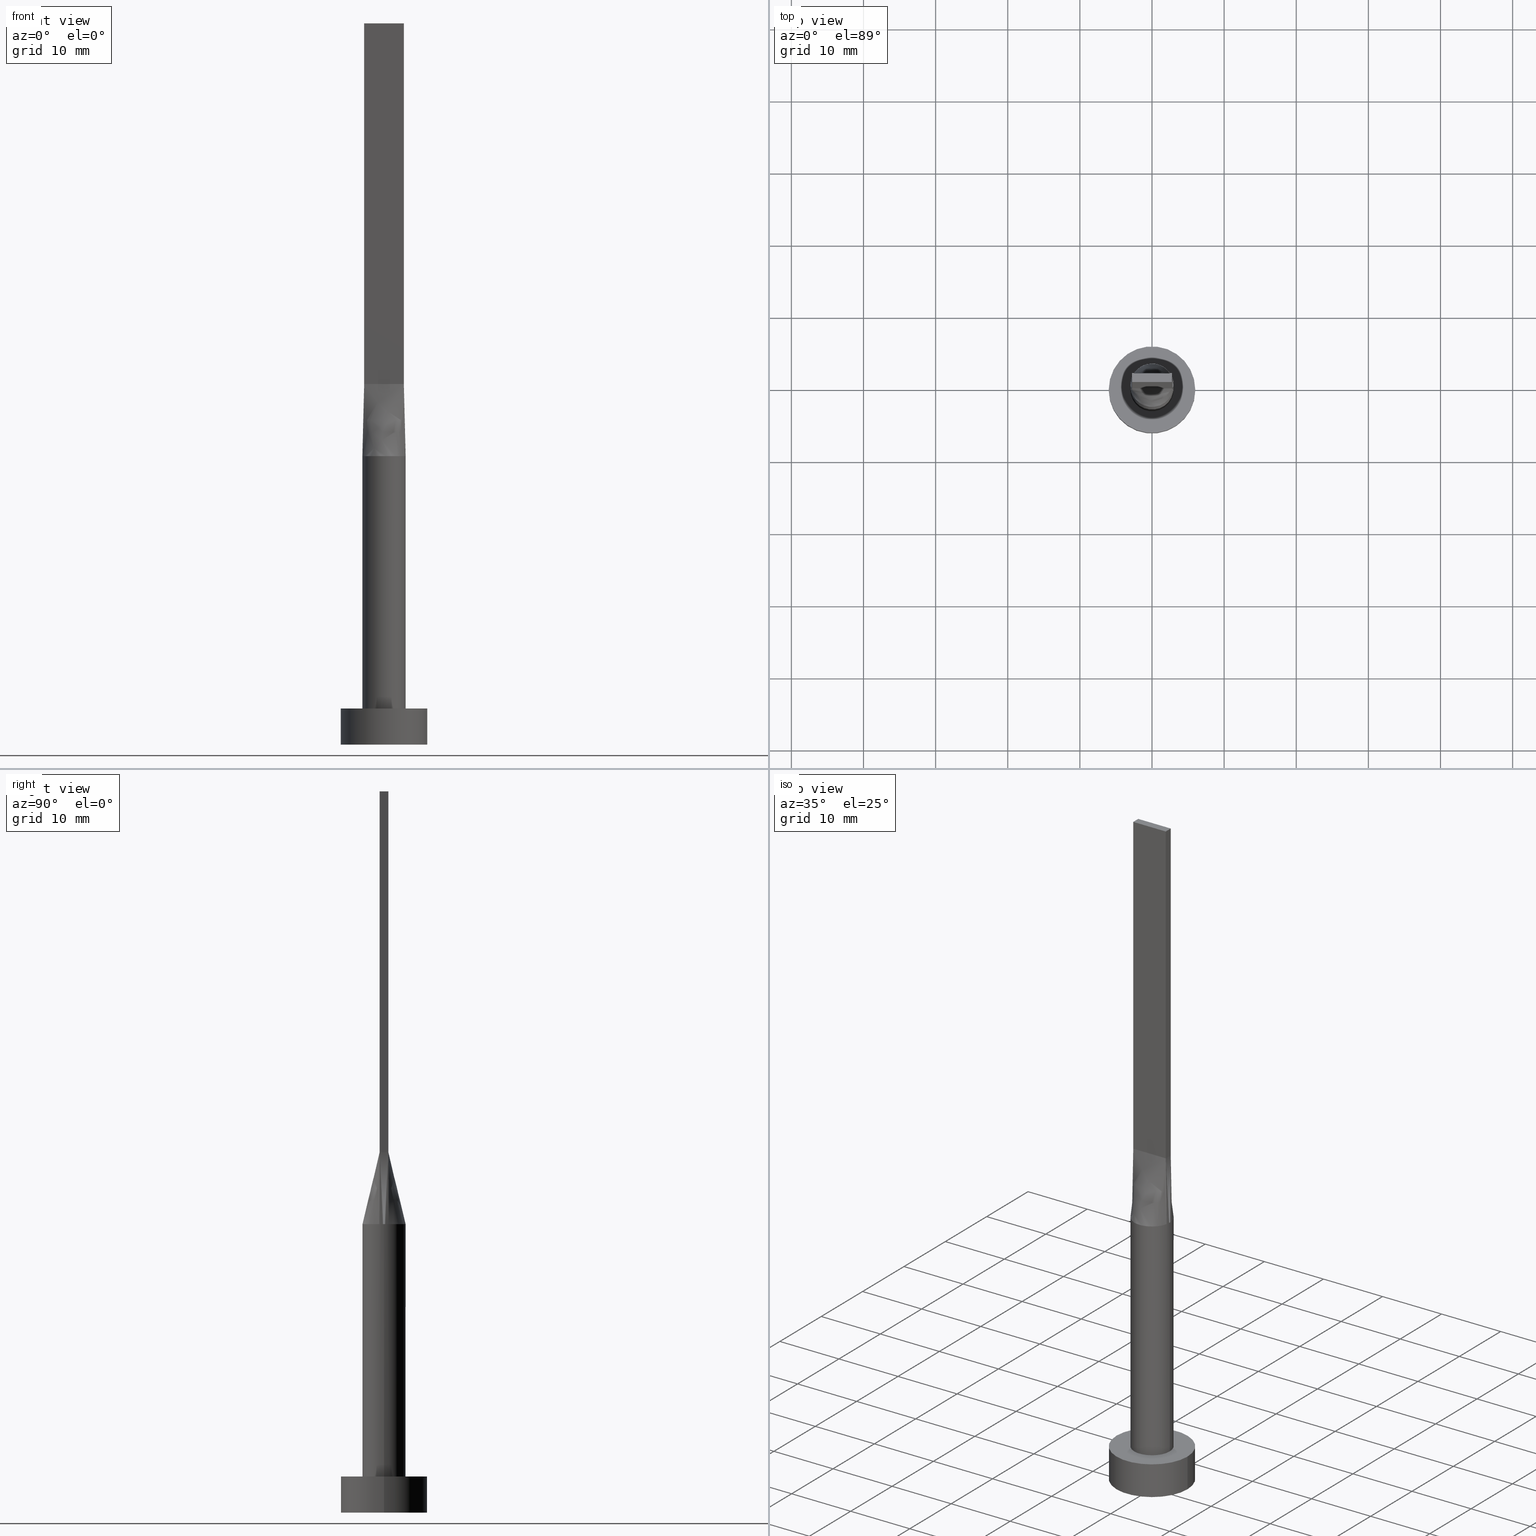
[diagram: canonical four-view strip — front | top / right | iso, engineering-drawing reading convention]
A machine part, canonical four-view strip (front | top / right | iso — engineering-drawing reading convention). The complete STEP part file that produces these views, byte-faithful:
ISO-10303-21;
HEADER;
FILE_DESCRIPTION (( 'STEP AP203' ),
    '1' );
FILE_NAME ('d1df.STEP',
    '2023-02-13T10:29:48',
    ( '' ),
    ( '' ),
    'SwSTEP 2.0',
    'SolidWorks 2019',
    '' );
FILE_SCHEMA (( 'CONFIG_CONTROL_DESIGN' ));
ENDSEC;

DATA;
#1 = DIRECTION ( 'NONE',  ( 0.000000000000000000, 0.000000000000000000, 1.000000000000000000 ) ) ;
#2 = LINE ( 'NONE', #391, #503 ) ;
#3 = ORIENTED_EDGE ( 'NONE', *, *, #471, .F. ) ;
#4 = CC_DESIGN_SECURITY_CLASSIFICATION ( #547, ( #194 ) ) ;
#5 = CC_DESIGN_PERSON_AND_ORGANIZATION_ASSIGNMENT ( #89, #266, ( #490 ) ) ;
#6 = DIRECTION ( 'NONE',  ( 0.000000000000000000, 0.000000000000000000, 1.000000000000000000 ) ) ;
#7 = DIRECTION ( 'NONE',  ( 1.000000000000000000, 0.000000000000000000, 0.000000000000000000 ) ) ;
#8 = CARTESIAN_POINT ( 'NONE',  ( 2.750000000000000000, 0.6000000000000001998, 50.00000000000000000 ) ) ;
#9 = CARTESIAN_POINT ( 'NONE',  ( -2.931315536094174057, -0.6395601373676296220, 40.00000000000000000 ) ) ;
#10 = AXIS2_PLACEMENT_3D ( 'NONE', #543, #289, #368 ) ;
#11 = LINE ( 'NONE', #14, #96 ) ;
#12 = CARTESIAN_POINT ( 'NONE',  ( 2.840523642114988867, -0.6197506128250874768, 45.00000000000000000 ) ) ;
#13 = EDGE_CURVE ( 'NONE', #116, #119, #436, .T. ) ;
#14 = CARTESIAN_POINT ( 'NONE',  ( -2.750000000000000000, -0.5999999999999994227, 100.0000000000000000 ) ) ;
#15 = LINE ( 'NONE', #12, #67 ) ;
#16 = PERSON ( 'NEUR�EN�', 'NEUR�EN�', 'NEUR�EN�', ('NEUR�EN�'), ('NEUR�EN�'), ('NEUR�EN�') ) ;
#17 = CARTESIAN_POINT ( 'NONE',  ( 0.000000000000000000, 0.000000000000000000, 5.000000000000000000 ) ) ;
#18 = ORIENTED_EDGE ( 'NONE', *, *, #393, .T. ) ;
#19 = AXIS2_PLACEMENT_3D ( 'NONE', #491, #273, #56 ) ;
#20 = AXIS2_PLACEMENT_3D ( 'NONE', #487, #1, #85 ) ;
#21 = CARTESIAN_POINT ( 'NONE',  ( 6.000000000000000888, 7.347880794884120722E-16, 5.000000000000000000 ) ) ;
#22 = CARTESIAN_POINT ( 'NONE',  ( 0.4026715616377294915, 2.999999999999999556, 40.00000000000000000 ) ) ;
#23 = CC_DESIGN_APPROVAL ( #401, ( #547 ) ) ;
#24 = PLANE ( 'NONE',  #248 ) ;
#25 = CARTESIAN_POINT ( 'NONE',  ( 2.792624347712116872, 1.135030881087315979, 40.00000000000002132 ) ) ;
#26 = CARTESIAN_POINT ( 'NONE',  ( 2.750000000000000000, -0.5999999999999997558, 100.0000000000000000 ) ) ;
#27 = CARTESIAN_POINT ( 'NONE',  ( 6.000000000000000888, 7.347880794884120722E-16, 5.000000000000000000 ) ) ;
#28 = ORIENTED_EDGE ( 'NONE', *, *, #102, .T. ) ;
#29 = EDGE_CURVE ( 'NONE', #364, #304, #486, .T. ) ;
#30 = DIRECTION ( 'NONE',  ( 1.000000000000000000, 0.000000000000000000, -0.000000000000000000 ) ) ;
#31 = CIRCLE ( 'NONE', #392, 6.000000000000000888 ) ;
#32 = DIRECTION ( 'NONE',  ( -0.01810162078030962129, -0.003949444533885605735, 0.9998283518749604415 ) ) ;
#33 = PLANE ( 'NONE',  #228 ) ;
#34 = DIRECTION ( 'NONE',  ( -0.000000000000000000, -0.000000000000000000, -1.000000000000000000 ) ) ;
#35 = PERSON_AND_ORGANIZATION_ROLE ( 'classification_officer' ) ;
#36 = CARTESIAN_POINT ( 'NONE',  ( -2.976487486186430331, -0.4312336333497656105, 40.00000000000000000 ) ) ;
#37 = SECURITY_CLASSIFICATION_LEVEL ( 'unclassified' ) ;
#38 = VECTOR ( 'NONE', #375, 1000.000000000000000 ) ;
#39 = LINE ( 'NONE', #138, #217 ) ;
#40 = APPROVAL_PERSON_ORGANIZATION ( #483, #456, #435 ) ;
#41 = VERTEX_POINT ( 'NONE', #9 ) ;
#42 = APPROVAL_DATE_TIME ( #171, #233 ) ;
#43 = CARTESIAN_POINT ( 'NONE',  ( -2.750000000000000000, -0.5999999999999994227, 100.0000000000000000 ) ) ;
#44 = EDGE_CURVE ( 'NONE', #119, #400, #108, .T. ) ;
#45 = VERTEX_POINT ( 'NONE', #539 ) ;
#46 = PERSON_AND_ORGANIZATION_ROLE ( 'creator' ) ;
#47 = CARTESIAN_POINT ( 'NONE',  ( -2.520833333333333037, -0.5999999999999994227, 50.00000000000000000 ) ) ;
#48 = ORIENTED_EDGE ( 'NONE', *, *, #434, .T. ) ;
#49 = PERSON_AND_ORGANIZATION_ROLE ( 'creator' ) ;
#50 = CARTESIAN_POINT ( 'NONE',  ( -0.4583333333333328152, -0.5999999999999994227, 50.00000000000000000 ) ) ;
#51 = ORIENTED_EDGE ( 'NONE', *, *, #326, .F. ) ;
#52 = CARTESIAN_POINT ( 'NONE',  ( 2.750000000000000000, -0.1999999999999961253, 50.00000000000000000 ) ) ;
#53 = ORIENTED_EDGE ( 'NONE', *, *, #122, .T. ) ;
#54 = DIRECTION ( 'NONE',  ( 1.000000000000000000, 0.000000000000000000, 0.000000000000000000 ) ) ;
#55 = VERTEX_POINT ( 'NONE', #247 ) ;
#56 = DIRECTION ( 'NONE',  ( -1.000000000000000000, 0.000000000000000000, 0.000000000000000000 ) ) ;
#57 = ORIENTED_EDGE ( 'NONE', *, *, #169, .F. ) ;
#58 = AXIS2_PLACEMENT_3D ( 'NONE', #376, #6, #104 ) ;
#59 = EDGE_CURVE ( 'NONE', #71, #181, #15, .T. ) ;
#60 = CARTESIAN_POINT ( 'NONE',  ( -2.750000000000000000, -0.5999999999999994227, 100.0000000000000000 ) ) ;
#61 = CARTESIAN_POINT ( 'NONE',  ( -2.878980386154874616, 0.8781411751610629368, 39.99999999999999289 ) ) ;
#62 = DIRECTION ( 'NONE',  ( -1.000000000000000000, -0.000000000000000000, -0.000000000000000000 ) ) ;
#63 = ADVANCED_FACE ( 'NONE', ( #239 ), #174, .T. ) ;
#64 = CARTESIAN_POINT ( 'NONE',  ( 2.878980386154874616, 0.8781411751610636029, 39.99999999999999289 ) ) ;
#65 = ADVANCED_FACE ( 'NONE', ( #77 ), #125, .T. ) ;
#66 = CARTESIAN_POINT ( 'NONE',  ( -0.4026715616377299356, 2.999999999999999556, 40.00000000000000000 ) ) ;
#67 = VECTOR ( 'NONE', #541, 1000.000000000000000 ) ;
#68 = AXIS2_PLACEMENT_3D ( 'NONE', #554, #154, #259 ) ;
#69 = APPLICATION_PROTOCOL_DEFINITION ( 'international standard', 'config_control_design', 1994, #249 ) ;
#70 = CARTESIAN_POINT ( 'NONE',  ( -0.8041209001220690489, 2.916015559847871419, 40.00000000000000000 ) ) ;
#71 = VERTEX_POINT ( 'NONE', #347 ) ;
#72 = LOCAL_TIME ( 11, 29, 48.00000000000000000, #175 ) ;
#73 = CARTESIAN_POINT ( 'NONE',  ( -2.750000000000000000, 0.6000000000000001998, 50.00000000000000000 ) ) ;
#74 = DIRECTION ( 'NONE',  ( 0.000000000000000000, -1.000000000000000000, 0.000000000000000000 ) ) ;
#75 = DIRECTION ( 'NONE',  ( -1.000000000000000000, 0.000000000000000000, 0.000000000000000000 ) ) ;
#76 = VECTOR ( 'NONE', #32, 1000.000000000000000 ) ;
#77 = FACE_OUTER_BOUND ( 'NONE', #527, .T. ) ;
#78 = DATE_AND_TIME ( #528, #580 ) ;
#79 = CARTESIAN_POINT ( 'NONE',  ( -1.517787371616671654, 2.616501225271827380, 40.00000000000000000 ) ) ;
#80 = PERSON_AND_ORGANIZATION_ROLE ( 'design_supplier' ) ;
#81 = CARTESIAN_POINT ( 'NONE',  ( 2.291666666666666519, -0.5999999999999996447, 50.00000000000000000 ) ) ;
#82 = EDGE_CURVE ( 'NONE', #181, #409, #516, .T. ) ;
#83 = ORIENTED_EDGE ( 'NONE', *, *, #224, .T. ) ;
#84 = APPLICATION_CONTEXT ( 'configuration controlled 3d designs of mechanical parts and assemblies' ) ;
#85 = DIRECTION ( 'NONE',  ( 1.000000000000000000, 0.000000000000000000, 0.000000000000000000 ) ) ;
#86 = CARTESIAN_POINT ( 'NONE',  ( 2.792624347712116872, -1.135030881087315757, 40.00000000000001421 ) ) ;
#87 = LOCAL_TIME ( 11, 29, 48.00000000000000000, #263 ) ;
#88 = ORIENTED_EDGE ( 'NONE', *, *, #135, .T. ) ;
#89 = PERSON_AND_ORGANIZATION ( #16, #451 ) ;
#90 = CARTESIAN_POINT ( 'NONE',  ( 2.750000000000000000, -0.5999999999999997558, 50.00000000000000000 ) ) ;
#91 = EDGE_LOOP ( 'NONE', ( #492, #357, #536, #407 ) ) ;
#92 = CARTESIAN_POINT ( 'NONE',  ( -2.750000000000000000, 0.1999999999999964306, 50.00000000000000000 ) ) ;
#93 = B_SPLINE_CURVE_WITH_KNOTS ( 'NONE', 3,
 ( #163, #260, #25, #205, #387, #115, #423, #157, #22, #306, #70, #79, #384, #202, #380, #350, #430, #433 ),
 .UNSPECIFIED., .F., .F.,
 ( 4, 2, 2, 2, 2, 2, 2, 2, 4 ),
 ( 0.000000000000000000, 0.1250000000000000000, 0.2500000000000000000, 0.3750000000000000000, 0.5000000000000000000, 0.6250000000000000000, 0.7500000000000000000, 0.8750000000000000000, 1.000000000000000000 ),
 .UNSPECIFIED. ) ;
#94 = ORIENTED_EDGE ( 'NONE', *, *, #476, .F. ) ;
#95 = DIRECTION ( 'NONE',  ( 0.000000000000000000, 0.000000000000000000, 1.000000000000000000 ) ) ;
#96 = VECTOR ( 'NONE', #282, 1000.000000000000000 ) ;
#97 = ORIENTED_EDGE ( 'NONE', *, *, #143, .F. ) ;
#98 = CARTESIAN_POINT ( 'NONE',  ( 2.750000000000000000, 0.6000000000000001998, 100.0000000000000000 ) ) ;
#99 = ORIENTED_EDGE ( 'NONE', *, *, #161, .F. ) ;
#100 = CARTESIAN_POINT ( 'NONE',  ( 2.750000000000000000, 0.4000000000000025757, 50.00000000000000000 ) ) ;
#101 = ORIENTED_EDGE ( 'NONE', *, *, #337, .F. ) ;
#102 = EDGE_CURVE ( 'NONE', #55, #116, #93, .T. ) ;
#103 = CC_DESIGN_PERSON_AND_ORGANIZATION_ASSIGNMENT ( #225, #35, ( #547 ) ) ;
#104 = DIRECTION ( 'NONE',  ( 1.000000000000000000, 0.000000000000000000, -0.000000000000000000 ) ) ;
#105 = CARTESIAN_POINT ( 'NONE',  ( -1.833333333333333037, 0.6000000000000000888, 50.00000000000000000 ) ) ;
#106 = CIRCLE ( 'NONE', #170, 3.000000000000000444 ) ;
#107 = DIRECTION ( 'NONE',  ( 0.000000000000000000, 0.000000000000000000, 1.000000000000000000 ) ) ;
#108 = LINE ( 'NONE', #421, #38 ) ;
#109 =( LENGTH_UNIT ( ) NAMED_UNIT ( * ) SI_UNIT ( .MILLI., .METRE. ) );
#110 = CARTESIAN_POINT ( 'NONE',  ( -1.145833333333332815, 0.6000000000000000888, 50.00000000000000000 ) ) ;
#111 = CARTESIAN_POINT ( 'NONE',  ( 0.000000000000000000, 0.000000000000000000, 5.000000000000000000 ) ) ;
#112 = DIRECTION ( 'NONE',  ( 0.000000000000000000, 1.000000000000000000, 0.000000000000000000 ) ) ;
#113 = EDGE_CURVE ( 'NONE', #463, #354, #118, .T. ) ;
#114 = AXIS2_PLACEMENT_3D ( 'NONE', #159, #473, #513 ) ;
#115 = CARTESIAN_POINT ( 'NONE',  ( 1.829136458871247761, 2.402980488111650992, 39.99999999999997868 ) ) ;
#116 = VERTEX_POINT ( 'NONE', #551 ) ;
#117 = DIRECTION ( 'NONE',  ( -0.01810162078030962129, -0.003949444533885649103, -0.9998283518749604415 ) ) ;
#118 = LINE ( 'NONE', #424, #341 ) ;
#119 = VERTEX_POINT ( 'NONE', #155 ) ;
#120 = DIRECTION ( 'NONE',  ( 1.000000000000000000, 0.000000000000000000, -0.000000000000000000 ) ) ;
#121 = ORIENTED_EDGE ( 'NONE', *, *, #274, .F. ) ;
#122 = EDGE_CURVE ( 'NONE', #463, #232, #557, .T. ) ;
#123 = MECHANICAL_CONTEXT ( 'NONE', #249, 'mechanical' ) ;
#124 = AXIS2_PLACEMENT_3D ( 'NONE', #111, #297, #30 ) ;
#125 = CYLINDRICAL_SURFACE ( 'NONE', #467, 6.000000000000000888 ) ;
#126 = EDGE_CURVE ( 'NONE', #119, #41, #132, .T. ) ;
#127 = CARTESIAN_POINT ( 'NONE',  ( 0.4583333333333337034, -0.5999999999999995337, 50.00000000000000000 ) ) ;
#128 = VERTEX_POINT ( 'NONE', #509 ) ;
#129 = CARTESIAN_POINT ( 'NONE',  ( -6.000000000000000888, 0.000000000000000000, 5.000000000000000000 ) ) ;
#130 = ORIENTED_EDGE ( 'NONE', *, *, #241, .T. ) ;
#131 = APPROVAL_STATUS ( 'not_yet_approved' ) ;
#132 = CIRCLE ( 'NONE', #114, 3.000000000000000444 ) ;
#133 = CARTESIAN_POINT ( 'NONE',  ( 1.517787371616671876, -2.616501225271829156, 40.00000000000000711 ) ) ;
#134 = ORIENTED_EDGE ( 'NONE', *, *, #393, .F. ) ;
#135 = EDGE_CURVE ( 'NONE', #55, #409, #301, .T. ) ;
#136 = CARTESIAN_POINT ( 'NONE',  ( -2.931047284229977734, -0.6395012256501755310, 40.00000000000000000 ) ) ;
#137 = EDGE_LOOP ( 'NONE', ( #18, #53, #307, #178 ) ) ;
#138 = CARTESIAN_POINT ( 'NONE',  ( 3.000000000000000444, 3.673940397442060361E-16, 40.00000000000000000 ) ) ;
#139 = EDGE_LOOP ( 'NONE', ( #187, #275, #88, #235, #281 ) ) ;
#140 = LINE ( 'NONE', #544, #385 ) ;
#141 = CIRCLE ( 'NONE', #258, 3.000000000000000444 ) ;
#142 = CARTESIAN_POINT ( 'NONE',  ( 1.145833333333333703, 0.6000000000000000888, 50.00000000000000711 ) ) ;
#143 = EDGE_CURVE ( 'NONE', #530, #323, #520, .T. ) ;
#144 = DIRECTION ( 'NONE',  ( 0.000000000000000000, -0.000000000000000000, -1.000000000000000000 ) ) ;
#145 = CARTESIAN_POINT ( 'NONE',  ( -0.8041209001220690489, 2.916015559847871419, 40.00000000000000000 ) ) ;
#146 = PRODUCT_DEFINITION_SHAPE ( 'NONE', 'NONE',  #480 ) ;
#147 = CARTESIAN_POINT ( 'NONE',  ( 2.750000000000000000, 0.2000000000000038136, 50.00000000000000000 ) ) ;
#148 = CARTESIAN_POINT ( 'NONE',  ( 2.750000000000000000, 0.6000000000000001998, 50.00000000000000000 ) ) ;
#149 = CARTESIAN_POINT ( 'NONE',  ( 0.000000000000000000, 0.000000000000000000, 5.000000000000000000 ) ) ;
#150 = ORIENTED_EDGE ( 'NONE', *, *, #326, .T. ) ;
#151 = VECTOR ( 'NONE', #117, 1000.000000000000000 ) ;
#152 = DIRECTION ( 'NONE',  ( 1.000000000000000000, -8.881784197001252323E-15, 0.000000000000000000 ) ) ;
#153 = CARTESIAN_POINT ( 'NONE',  ( 0.4583333333333337589, 0.6000000000000000888, 50.00000000000000711 ) ) ;
#154 = DIRECTION ( 'NONE',  ( -0.000000000000000000, -0.000000000000000000, -1.000000000000000000 ) ) ;
#155 = CARTESIAN_POINT ( 'NONE',  ( -2.999603793582328315, -7.025298958605770567E-16, 40.00000000000000000 ) ) ;
#156 = FACE_OUTER_BOUND ( 'NONE', #279, .T. ) ;
#157 = CARTESIAN_POINT ( 'NONE',  ( 0.8041209001220689379, 2.916015559847871863, 40.00000000000000000 ) ) ;
#158 = VECTOR ( 'NONE', #112, 1000.000000000000000 ) ;
#159 = CARTESIAN_POINT ( 'NONE',  ( 0.000000000000000000, 0.000000000000000000, 40.00000000000000000 ) ) ;
#160 = ORIENTED_EDGE ( 'NONE', *, *, #262, .F. ) ;
#161 = EDGE_CURVE ( 'NONE', #323, #409, #295, .T. ) ;
#162 = PLANE ( 'NONE',  #124 ) ;
#163 = CARTESIAN_POINT ( 'NONE',  ( 2.931303352270923757, 0.6395574164693091923, 40.00000000000000000 ) ) ;
#164 = ORIENTED_EDGE ( 'NONE', *, *, #44, .F. ) ;
#165 = ADVANCED_FACE ( 'NONE', ( #345 ), #426, .F. ) ;
#166 = CARTESIAN_POINT ( 'NONE',  ( 0.000000000000000000, 0.000000000000000000, 5.000000000000000000 ) ) ;
#167 = DIRECTION ( 'NONE',  ( -0.000000000000000000, -0.000000000000000000, -1.000000000000000000 ) ) ;
#168 = VERTEX_POINT ( 'NONE', #27 ) ;
#169 = EDGE_CURVE ( 'NONE', #128, #55, #511, .T. ) ;
#170 = AXIS2_PLACEMENT_3D ( 'NONE', #149, #408, #542 ) ;
#171 = DATE_AND_TIME ( #358, #287 ) ;
#172 = CARTESIAN_POINT ( 'NONE',  ( -2.328745122427009928, -1.922758842442225058, 39.99999999999997868 ) ) ;
#173 = ORIENTED_EDGE ( 'NONE', *, *, #581, .T. ) ;
#174 = B_SPLINE_SURFACE_WITH_KNOTS ( 'NONE', 3, 1, ( 
 ( #243, #148 ),
 ( #64, #245 ),
 ( #193, #200 ),
 ( #327, #378 ),
 ( #465, #549 ),
 ( #415, #142 ),
 ( #196, #501 ),
 ( #496, #153 ),
 ( #336, #371 ),
 ( #66, #507 ),
 ( #145, #329 ),
 ( #499, #419 ),
 ( #458, #110 ),
 ( #373, #331 ),
 ( #198, #105 ),
 ( #286, #461 ),
 ( #61, #475 ),
 ( #339, #73 ) ),
 .UNSPECIFIED., .F., .F., .F.,
 ( 4, 2, 2, 2, 2, 2, 2, 2, 4 ),
 ( 2, 2 ),
 ( 0.000000000000000000, 0.1250000000000000000, 0.2500000000000000000, 0.3750000000000000000, 0.5000000000000000000, 0.6250000000000000000, 0.7500000000000000000, 0.8750000000000000000, 1.000000000000000000 ),
 ( 0.000000000000000000, 1.000000000000000000 ),
 .UNSPECIFIED. ) ;
#175 = COORDINATED_UNIVERSAL_TIME_OFFSET ( 1, 0, .AHEAD. ) ;
#176 = UNCERTAINTY_MEASURE_WITH_UNIT (LENGTH_MEASURE( 1.000000000000000082E-05 ), #109, 'distance_accuracy_value', 'NONE');
#177 = CARTESIAN_POINT ( 'NONE',  ( -2.750000000000000000, -0.2000000000000034528, 50.00000000000000000 ) ) ;
#178 = ORIENTED_EDGE ( 'NONE', *, *, #143, .T. ) ;
#179 = ADVANCED_FACE ( 'NONE', ( #340 ), #316, .T. ) ;
#180 = CARTESIAN_POINT ( 'NONE',  ( -2.931047284229977734, -0.6395012256501755310, 40.00000000000000000 ) ) ;
#181 = VERTEX_POINT ( 'NONE', #90 ) ;
#182 = DATE_AND_TIME ( #521, #87 ) ;
#183 = AXIS2_PLACEMENT_3D ( 'NONE', #410, #330, #144 ) ;
#184 = CYLINDRICAL_SURFACE ( 'NONE', #19, 6.000000000000000888 ) ;
#185 = EDGE_LOOP ( 'NONE', ( #360, #366, #534, #130 ) ) ;
#186 = CARTESIAN_POINT ( 'NONE',  ( -2.999207587164656630, 0.2156168166748832771, 40.00000000000000000 ) ) ;
#187 = ORIENTED_EDGE ( 'NONE', *, *, #337, .T. ) ;
#188 = CARTESIAN_POINT ( 'NONE',  ( -6.000000000000000888, 0.000000000000000000, 0.000000000000000000 ) ) ;
#189 = ORIENTED_EDGE ( 'NONE', *, *, #581, .F. ) ;
#190 = EDGE_CURVE ( 'NONE', #334, #304, #322, .T. ) ;
#191 = CARTESIAN_POINT ( 'NONE',  ( 2.976487486186430331, -0.4312336333497666652, 40.00000000000000000 ) ) ;
#192 = AXIS2_PLACEMENT_3D ( 'NONE', #166, #425, #201 ) ;
#193 = CARTESIAN_POINT ( 'NONE',  ( 2.792624347712116872, 1.135030881087315979, 40.00000000000002132 ) ) ;
#194 = PRODUCT_DEFINITION_FORMATION_WITH_SPECIFIED_SOURCE ( 'LIBOVOLN�', '', #490, .NOT_KNOWN. ) ;
#195 = PLANE ( 'NONE',  #183 ) ;
#196 = CARTESIAN_POINT ( 'NONE',  ( 1.517787371616672099, 2.616501225271827824, 39.99999999999999289 ) ) ;
#197 = CARTESIAN_POINT ( 'NONE',  ( 2.931047284229977290, -0.6395012256501766412, 40.00000000000000000 ) ) ;
#198 = CARTESIAN_POINT ( 'NONE',  ( -2.518011668798964653, 1.657305971825549840, 40.00000000000001421 ) ) ;
#199 = CARTESIAN_POINT ( 'NONE',  ( 2.750000000000000000, -0.3999999999999973022, 50.00000000000000000 ) ) ;
#200 = CARTESIAN_POINT ( 'NONE',  ( 2.291666666666666519, 0.6000000000000000888, 50.00000000000000000 ) ) ;
#201 = DIRECTION ( 'NONE',  ( 1.000000000000000000, 0.000000000000000000, 0.000000000000000000 ) ) ;
#202 = CARTESIAN_POINT ( 'NONE',  ( -2.328745122427008152, 1.922758842442225280, 39.99999999999998579 ) ) ;
#203 = CARTESIAN_POINT ( 'NONE',  ( -2.750000000000000000, 0.6000000000000001998, 100.0000000000000000 ) ) ;
#204 = DIRECTION ( 'NONE',  ( -0.000000000000000000, -0.000000000000000000, -1.000000000000000000 ) ) ;
#205 = CARTESIAN_POINT ( 'NONE',  ( 2.518011668798964209, 1.657305971825549840, 40.00000000000001421 ) ) ;
#206 = EDGE_LOOP ( 'NONE', ( #160, #265 ) ) ;
#207 = CC_DESIGN_PERSON_AND_ORGANIZATION_ASSIGNMENT ( #571, #80, ( #194 ) ) ;
#208 = AXIS2_PLACEMENT_3D ( 'NONE', #389, #382, #552 ) ;
#209 = CARTESIAN_POINT ( 'NONE',  ( 0.000000000000000000, 0.000000000000000000, 40.00000000000000000 ) ) ;
#210 = CARTESIAN_POINT ( 'NONE',  ( -2.931047284229977290, 0.6395012256501761971, 40.00000000000000000 ) ) ;
#211 = DIRECTION ( 'NONE',  ( -1.000000000000000000, 0.000000000000000000, 0.000000000000000000 ) ) ;
#212 = DIRECTION ( 'NONE',  ( -0.000000000000000000, 0.000000000000000000, -1.000000000000000000 ) ) ;
#213 = ADVANCED_FACE ( 'NONE', ( #318 ), #575, .T. ) ;
#214 = PERSON_AND_ORGANIZATION ( #16, #451 ) ;
#215 = CARTESIAN_POINT ( 'NONE',  ( 2.518011668798964209, -1.657305971825550506, 40.00000000000001421 ) ) ;
#216 = ORIENTED_EDGE ( 'NONE', *, *, #428, .T. ) ;
#217 = VECTOR ( 'NONE', #443, 1000.000000000000000 ) ;
#218 = APPROVAL_STATUS ( 'not_yet_approved' ) ;
#219 = DIRECTION ( 'NONE',  ( 1.000000000000000000, -5.913830031739115543E-17, 0.000000000000000000 ) ) ;
#220 = ORIENTED_EDGE ( 'NONE', *, *, #102, .F. ) ;
#221 = COORDINATED_UNIVERSAL_TIME_OFFSET ( 1, 0, .AHEAD. ) ;
#222 = CARTESIAN_POINT ( 'NONE',  ( -2.999207587164656630, -0.2156168166748826387, 40.00000000000000000 ) ) ;
#223 = ORIENTED_EDGE ( 'NONE', *, *, #428, .F. ) ;
#224 = EDGE_CURVE ( 'NONE', #128, #578, #39, .T. ) ;
#225 = PERSON_AND_ORGANIZATION ( #16, #451 ) ;
#226 = CARTESIAN_POINT ( 'NONE',  ( -1.145833333333332149, -0.5999999999999994227, 50.00000000000000000 ) ) ;
#227 = ORIENTED_EDGE ( 'NONE', *, *, #161, .T. ) ;
#228 = AXIS2_PLACEMENT_3D ( 'NONE', #26, #211, #429 ) ;
#229 = CARTESIAN_POINT ( 'NONE',  ( 2.931047284229977734, -0.6395012256501753090, 40.00000000000000000 ) ) ;
#230 = ORIENTED_EDGE ( 'NONE', *, *, #59, .T. ) ;
#231 = FACE_OUTER_BOUND ( 'NONE', #206, .T. ) ;
#232 = VERTEX_POINT ( 'NONE', #314 ) ;
#233 = APPROVAL ( #131, 'NEUR�EN�' ) ;
#234 = LINE ( 'NONE', #278, #351 ) ;
#235 = ORIENTED_EDGE ( 'NONE', *, *, #82, .F. ) ;
#236 = EDGE_CURVE ( 'NONE', #45, #181, #2, .T. ) ;
#237 = DIRECTION ( 'NONE',  ( 0.000000000000000000, 0.000000000000000000, 1.000000000000000000 ) ) ;
#238 = VECTOR ( 'NONE', #488, 1000.000000000000000 ) ;
#239 = FACE_OUTER_BOUND ( 'NONE', #342, .T. ) ;
#240 =( GEOMETRIC_REPRESENTATION_CONTEXT ( 3 ) GLOBAL_UNCERTAINTY_ASSIGNED_CONTEXT ( ( #176 ) ) GLOBAL_UNIT_ASSIGNED_CONTEXT ( ( #109, #302, #474 ) ) REPRESENTATION_CONTEXT ( 'NONE', 'WORKASPACE' ) );
#241 = EDGE_CURVE ( 'NONE', #232, #45, #396, .T. ) ;
#242 = DIRECTION ( 'NONE',  ( -0.000000000000000000, -0.000000000000000000, -1.000000000000000000 ) ) ;
#243 = CARTESIAN_POINT ( 'NONE',  ( 2.931047284229977290, 0.6395012256501767522, 40.00000000000000000 ) ) ;
#244 = CARTESIAN_POINT ( 'NONE',  ( 0.000000000000000000, 0.000000000000000000, 5.000000000000000000 ) ) ;
#245 = CARTESIAN_POINT ( 'NONE',  ( 2.520833333333333037, 0.6000000000000000888, 50.00000000000000000 ) ) ;
#246 = MANIFOLD_SOLID_BREP ( 'P�idat vysunut�m5', #291 ) ;
#247 = CARTESIAN_POINT ( 'NONE',  ( 2.931303352270923757, 0.6395574164693091923, 40.00000000000000000 ) ) ;
#248 = AXIS2_PLACEMENT_3D ( 'NONE', #515, #383, #506 ) ;
#249 = APPLICATION_CONTEXT ( 'configuration controlled 3d designs of mechanical parts and assemblies' ) ;
#250 = DIRECTION ( 'NONE',  ( -1.000000000000000000, 0.000000000000000000, 0.000000000000000000 ) ) ;
#251 = DIRECTION ( 'NONE',  ( -0.000000000000000000, -0.000000000000000000, -1.000000000000000000 ) ) ;
#252 = ADVANCED_FACE ( 'NONE', ( #577 ), #184, .T. ) ;
#253 = CARTESIAN_POINT ( 'NONE',  ( -2.750000000000000000, 0.6000000000000001998, 100.0000000000000000 ) ) ;
#254 = CARTESIAN_POINT ( 'NONE',  ( 2.750000000000000000, -0.5999999999999997558, 100.0000000000000000 ) ) ;
#255 = ORIENTED_EDGE ( 'NONE', *, *, #82, .T. ) ;
#256 = DIRECTION ( 'NONE',  ( -1.000000000000000000, 5.913830031739115543E-17, 0.000000000000000000 ) ) ;
#257 = DIRECTION ( 'NONE',  ( -0.000000000000000000, 1.000000000000000000, -0.000000000000000000 ) ) ;
#258 = AXIS2_PLACEMENT_3D ( 'NONE', #335, #237, #152 ) ;
#259 = DIRECTION ( 'NONE',  ( -1.000000000000000000, 0.000000000000000000, 0.000000000000000000 ) ) ;
#260 = CARTESIAN_POINT ( 'NONE',  ( 2.878980386154874616, 0.8781411751610636029, 39.99999999999999289 ) ) ;
#261 = CARTESIAN_POINT ( 'NONE',  ( -1.517787371616672321, -2.616501225271827380, 39.99999999999998579 ) ) ;
#262 = EDGE_CURVE ( 'NONE', #304, #364, #369, .T. ) ;
#263 = COORDINATED_UNIVERSAL_TIME_OFFSET ( 1, 0, .AHEAD. ) ;
#264 = CARTESIAN_POINT ( 'NONE',  ( 2.520833333333333037, -0.5999999999999996447, 50.00000000000000000 ) ) ;
#265 = ORIENTED_EDGE ( 'NONE', *, *, #29, .F. ) ;
#266 = PERSON_AND_ORGANIZATION_ROLE ( 'design_owner' ) ;
#267 = CIRCLE ( 'NONE', #296, 3.000000000000000444 ) ;
#268 = CARTESIAN_POINT ( 'NONE',  ( 2.878980386154875060, -0.8781411751610634919, 40.00000000000000000 ) ) ;
#269 = EDGE_LOOP ( 'NONE', ( #311, #411, #94, #494, #121 ) ) ;
#270 = DATE_AND_TIME ( #313, #512 ) ;
#271 = CARTESIAN_POINT ( 'NONE',  ( -2.291666666666665630, -0.5999999999999994227, 50.00000000000000000 ) ) ;
#272 = ORIENTED_EDGE ( 'NONE', *, *, #13, .F. ) ;
#273 = DIRECTION ( 'NONE',  ( -0.000000000000000000, -0.000000000000000000, -1.000000000000000000 ) ) ;
#274 = EDGE_CURVE ( 'NONE', #116, #354, #325, .T. ) ;
#275 = ORIENTED_EDGE ( 'NONE', *, *, #169, .T. ) ;
#276 = ADVANCED_FACE ( 'NONE', ( #367 ), #195, .F. ) ;
#277 = VECTOR ( 'NONE', #533, 1000.000000000000000 ) ;
#278 = CARTESIAN_POINT ( 'NONE',  ( 2.750000000000000000, 0.6000000000000001998, 100.0000000000000000 ) ) ;
#279 = EDGE_LOOP ( 'NONE', ( #523, #101, #189, #482, #309, #150 ) ) ;
#280 = CARTESIAN_POINT ( 'NONE',  ( -2.750000000000000000, 0.6000000000000001998, 50.00000000000000000 ) ) ;
#281 = ORIENTED_EDGE ( 'NONE', *, *, #59, .F. ) ;
#282 = DIRECTION ( 'NONE',  ( 1.000000000000000000, -5.913830031739115543E-17, 0.000000000000000000 ) ) ;
#283 = DIRECTION ( 'NONE',  ( 0.000000000000000000, 0.000000000000000000, 1.000000000000000000 ) ) ;
#284 = ADVANCED_BREP_SHAPE_REPRESENTATION ( 'd1df', ( #246, #20 ), #240 ) ;
#285 = FACE_OUTER_BOUND ( 'NONE', #185, .T. ) ;
#286 = CARTESIAN_POINT ( 'NONE',  ( -2.792624347712117761, 1.135030881087315313, 40.00000000000001421 ) ) ;
#287 = LOCAL_TIME ( 11, 29, 48.00000000000000000, #438 ) ;
#288 = PLANE ( 'NONE',  #58 ) ;
#289 = DIRECTION ( 'NONE',  ( 0.000000000000000000, 0.000000000000000000, 1.000000000000000000 ) ) ;
#290 = LINE ( 'NONE', #431, #151 ) ;
#291 = CLOSED_SHELL ( 'NONE', ( #537, #252, #65, #518, #294, #568, #213, #418, #179, #63, #276, #165, #432, #508, #560 ) ) ;
#292 = ORIENTED_EDGE ( 'NONE', *, *, #321, .F. ) ;
#293 = FACE_BOUND ( 'NONE', #348, .T. ) ;
#294 = ADVANCED_FACE ( 'NONE', ( #231 ), #288, .F. ) ;
#295 = LINE ( 'NONE', #468, #441 ) ;
#296 = AXIS2_PLACEMENT_3D ( 'NONE', #209, #510, #338 ) ;
#297 = DIRECTION ( 'NONE',  ( 0.000000000000000000, 0.000000000000000000, 1.000000000000000000 ) ) ;
#298 = CARTESIAN_POINT ( 'NONE',  ( -2.750000000000000000, 0.6000000000000001998, 100.0000000000000000 ) ) ;
#299 = ORIENTED_EDGE ( 'NONE', *, *, #113, .F. ) ;
#300 = CARTESIAN_POINT ( 'NONE',  ( 3.000000000000000444, 3.673940397442060361E-16, 5.000000000000000000 ) ) ;
#301 = LINE ( 'NONE', #517, #76 ) ;
#302 =( NAMED_UNIT ( * ) PLANE_ANGLE_UNIT ( ) SI_UNIT ( $, .RADIAN. ) );
#303 = CARTESIAN_POINT ( 'NONE',  ( -2.750000000000000000, 0.6000000000000001998, 50.00000000000000000 ) ) ;
#304 = VERTEX_POINT ( 'NONE', #188 ) ;
#305 = CALENDAR_DATE ( 2023, 13, 2 ) ;
#306 = CARTESIAN_POINT ( 'NONE',  ( -0.4026715616377299356, 2.999999999999999556, 40.00000000000000000 ) ) ;
#307 = ORIENTED_EDGE ( 'NONE', *, *, #412, .T. ) ;
#308 = CARTESIAN_POINT ( 'NONE',  ( 1.604166666666666741, -0.5999999999999996447, 50.00000000000000000 ) ) ;
#309 = ORIENTED_EDGE ( 'NONE', *, *, #44, .T. ) ;
#310 = CARTESIAN_POINT ( 'NONE',  ( -0.8041209001220698260, -2.916015559847872307, 40.00000000000000000 ) ) ;
#311 = ORIENTED_EDGE ( 'NONE', *, *, #13, .T. ) ;
#312 = VECTOR ( 'NONE', #538, 1000.000000000000000 ) ;
#313 = CALENDAR_DATE ( 2023, 13, 2 ) ;
#314 = CARTESIAN_POINT ( 'NONE',  ( -2.750000000000000000, -0.5999999999999994227, 100.0000000000000000 ) ) ;
#315 = ORIENTED_EDGE ( 'NONE', *, *, #355, .F. ) ;
#316 = B_SPLINE_SURFACE_WITH_KNOTS ( 'NONE', 3, 1, ( 
 ( #210, #303 ),
 ( #563, #569 ),
 ( #186, #92 ),
 ( #222, #177 ),
 ( #36, #493 ),
 ( #180, #363 ) ),
 .UNSPECIFIED., .F., .F., .F.,
 ( 4, 2, 4 ),
 ( 2, 2 ),
 ( 0.000000000000000000, 0.5000000000000000000, 1.000000000000000000 ),
 ( 0.000000000000000000, 1.000000000000000000 ),
 .UNSPECIFIED. ) ;
#317 = DESIGN_CONTEXT ( 'detailed design', #84, 'design' ) ;
#318 = FACE_OUTER_BOUND ( 'NONE', #444, .T. ) ;
#319 = EDGE_CURVE ( 'NONE', #530, #181, #420, .T. ) ;
#320 = EDGE_LOOP ( 'NONE', ( #478, #299, #134, #227 ) ) ;
#321 = EDGE_CURVE ( 'NONE', #409, #354, #140, .T. ) ;
#322 = LINE ( 'NONE', #129, #277 ) ;
#323 = VERTEX_POINT ( 'NONE', #98 ) ;
#324 = AXIS2_PLACEMENT_3D ( 'NONE', #244, #548, #454 ) ;
#325 = LINE ( 'NONE', #500, #312 ) ;
#326 = EDGE_CURVE ( 'NONE', #400, #578, #531, .T. ) ;
#327 = CARTESIAN_POINT ( 'NONE',  ( 2.518011668798964209, 1.657305971825549840, 40.00000000000001421 ) ) ;
#328 = FACE_OUTER_BOUND ( 'NONE', #139, .T. ) ;
#329 = CARTESIAN_POINT ( 'NONE',  ( -0.4583333333333329263, 0.6000000000000000888, 50.00000000000000000 ) ) ;
#330 = DIRECTION ( 'NONE',  ( 0.000000000000000000, -1.000000000000000000, 0.000000000000000000 ) ) ;
#331 = CARTESIAN_POINT ( 'NONE',  ( -1.604166666666666297, 0.6000000000000000888, 50.00000000000000000 ) ) ;
#332 = CARTESIAN_POINT ( 'NONE',  ( -6.000000000000000888, 0.000000000000000000, 5.000000000000000000 ) ) ;
#333 = VECTOR ( 'NONE', #257, 1000.000000000000000 ) ;
#334 = VERTEX_POINT ( 'NONE', #332 ) ;
#335 = CARTESIAN_POINT ( 'NONE',  ( 0.000000000000000000, 0.000000000000000000, 40.00000000000000000 ) ) ;
#336 = CARTESIAN_POINT ( 'NONE',  ( 0.4026715616377294915, 2.999999999999999556, 40.00000000000000000 ) ) ;
#337 = EDGE_CURVE ( 'NONE', #71, #128, #141, .T. ) ;
#338 = DIRECTION ( 'NONE',  ( 1.000000000000000000, 0.000000000000000000, 0.000000000000000000 ) ) ;
#339 = CARTESIAN_POINT ( 'NONE',  ( -2.931047284229977290, 0.6395012256501755310, 40.00000000000000000 ) ) ;
#340 = FACE_OUTER_BOUND ( 'NONE', #269, .T. ) ;
#341 = VECTOR ( 'NONE', #34, 1000.000000000000000 ) ;
#342 = EDGE_LOOP ( 'NONE', ( #28, #453, #292, #450 ) ) ;
#343 = APPROVAL_PERSON_ORGANIZATION ( #349, #233, #442 ) ;
#344 = DIRECTION ( 'NONE',  ( 5.913830031739115543E-17, 1.000000000000000000, -0.000000000000000000 ) ) ;
#345 = FACE_OUTER_BOUND ( 'NONE', #573, .T. ) ;
#346 = FACE_OUTER_BOUND ( 'NONE', #137, .T. ) ;
#347 = CARTESIAN_POINT ( 'NONE',  ( 2.931332910560268790, -0.6395638358681950963, 40.00000000000000000 ) ) ;
#348 = EDGE_LOOP ( 'NONE', ( #51, #223 ) ) ;
#349 = PERSON_AND_ORGANIZATION ( #16, #451 ) ;
#350 = CARTESIAN_POINT ( 'NONE',  ( -2.792624347712117761, 1.135030881087315313, 40.00000000000001421 ) ) ;
#351 = VECTOR ( 'NONE', #498, 1000.000000000000000 ) ;
#352 = COORDINATED_UNIVERSAL_TIME_OFFSET ( 1, 0, .AHEAD. ) ;
#353 = CARTESIAN_POINT ( 'NONE',  ( 1.145833333333333481, -0.5999999999999996447, 50.00000000000000000 ) ) ;
#354 = VERTEX_POINT ( 'NONE', #280 ) ;
#355 = EDGE_CURVE ( 'NONE', #334, #168, #31, .T. ) ;
#356 = CARTESIAN_POINT ( 'NONE',  ( -2.792624347712116428, -1.135030881087314647, 40.00000000000000711 ) ) ;
#357 = ORIENTED_EDGE ( 'NONE', *, *, #471, .T. ) ;
#358 = CALENDAR_DATE ( 2023, 13, 2 ) ;
#359 = CARTESIAN_POINT ( 'NONE',  ( 0.4026715616377293805, -3.000000000000001332, 40.00000000000000000 ) ) ;
#360 = ORIENTED_EDGE ( 'NONE', *, *, #236, .T. ) ;
#361 = AXIS2_PLACEMENT_3D ( 'NONE', #60, #344, #256 ) ;
#362 = CC_DESIGN_APPROVAL ( #456, ( #194 ) ) ;
#363 = CARTESIAN_POINT ( 'NONE',  ( -2.750000000000000000, -0.5999999999999995337, 50.00000000000000000 ) ) ;
#364 = VERTEX_POINT ( 'NONE', #370 ) ;
#365 = CARTESIAN_POINT ( 'NONE',  ( -2.518011668798964653, -1.657305971825550062, 40.00000000000001421 ) ) ;
#366 = ORIENTED_EDGE ( 'NONE', *, *, #319, .F. ) ;
#367 = FACE_OUTER_BOUND ( 'NONE', #320, .T. ) ;
#368 = DIRECTION ( 'NONE',  ( 1.000000000000000000, 0.000000000000000000, 0.000000000000000000 ) ) ;
#369 = CIRCLE ( 'NONE', #413, 6.000000000000000888 ) ;
#370 = CARTESIAN_POINT ( 'NONE',  ( 6.000000000000000888, 7.347880794884120722E-16, 0.000000000000000000 ) ) ;
#371 = CARTESIAN_POINT ( 'NONE',  ( 0.2291666666666671015, 0.6000000000000001998, 50.00000000000000711 ) ) ;
#372 = CARTESIAN_POINT ( 'NONE',  ( 2.750000000000000000, 0.6000000000000001998, 50.00000000000000000 ) ) ;
#373 = CARTESIAN_POINT ( 'NONE',  ( -2.328745122427008152, 1.922758842442225280, 39.99999999999998579 ) ) ;
#374 = CARTESIAN_POINT ( 'NONE',  ( 2.976487486186430331, 0.4312336333497658880, 40.00000000000000000 ) ) ;
#375 = DIRECTION ( 'NONE',  ( -0.000000000000000000, -0.000000000000000000, -1.000000000000000000 ) ) ;
#376 = CARTESIAN_POINT ( 'NONE',  ( 0.000000000000000000, 0.000000000000000000, 0.000000000000000000 ) ) ;
#377 = VECTOR ( 'NONE', #558, 1000.000000000000000 ) ;
#378 = CARTESIAN_POINT ( 'NONE',  ( 1.833333333333333481, 0.6000000000000000888, 50.00000000000000000 ) ) ;
#379 = CARTESIAN_POINT ( 'NONE',  ( 2.750000000000000000, -0.5999999999999997558, 100.0000000000000000 ) ) ;
#380 = CARTESIAN_POINT ( 'NONE',  ( -2.518011668798964653, 1.657305971825549840, 40.00000000000001421 ) ) ;
#381 = LINE ( 'NONE', #472, #579 ) ;
#382 = DIRECTION ( 'NONE',  ( 0.000000000000000000, 0.000000000000000000, 1.000000000000000000 ) ) ;
#383 = DIRECTION ( 'NONE',  ( 0.000000000000000000, 0.000000000000000000, 1.000000000000000000 ) ) ;
#384 = CARTESIAN_POINT ( 'NONE',  ( -1.829136458871247761, 2.402980488111649660, 39.99999999999999289 ) ) ;
#385 = VECTOR ( 'NONE', #62, 1000.000000000000000 ) ;
#386 = LINE ( 'NONE', #21, #377 ) ;
#387 = CARTESIAN_POINT ( 'NONE',  ( 2.328745122427009040, 1.922758842442225946, 39.99999999999999289 ) ) ;
#388 = FACE_OUTER_BOUND ( 'NONE', #545, .T. ) ;
#389 = CARTESIAN_POINT ( 'NONE',  ( 0.000000000000000000, 0.000000000000000000, 40.00000000000000000 ) ) ;
#390 = DATE_AND_TIME ( #305, #72 ) ;
#391 = CARTESIAN_POINT ( 'NONE',  ( -2.750000000000000000, -0.5999999999999994227, 50.00000000000000000 ) ) ;
#392 = AXIS2_PLACEMENT_3D ( 'NONE', #17, #95, #54 ) ;
#393 = EDGE_CURVE ( 'NONE', #323, #463, #234, .T. ) ;
#394 = CC_DESIGN_APPROVAL ( #233, ( #480 ) ) ;
#395 = APPROVAL_ROLE ( '' ) ;
#396 = LINE ( 'NONE', #43, #238 ) ;
#397 = ORIENTED_EDGE ( 'NONE', *, *, #113, .T. ) ;
#398 = PERSON_AND_ORGANIZATION ( #16, #451 ) ;
#399 = CARTESIAN_POINT ( 'NONE',  ( -0.2291666666666664076, -0.5999999999999995337, 50.00000000000000000 ) ) ;
#400 = VERTEX_POINT ( 'NONE', #452 ) ;
#401 = APPROVAL ( #448, 'NEUR�EN�' ) ;
#402 = DATE_TIME_ROLE ( 'classification_date' ) ;
#403 = B_SPLINE_SURFACE_WITH_KNOTS ( 'NONE', 3, 1, ( 
 ( #197, #462 ),
 ( #191, #199 ),
 ( #457, #52 ),
 ( #414, #147 ),
 ( #374, #100 ),
 ( #540, #372 ) ),
 .UNSPECIFIED., .F., .F., .F.,
 ( 4, 2, 4 ),
 ( 2, 2 ),
 ( 0.000000000000000000, 0.5000000000000000000, 1.000000000000000000 ),
 ( 0.000000000000000000, 1.000000000000000000 ),
 .UNSPECIFIED. ) ;
#404 = CARTESIAN_POINT ( 'NONE',  ( -0.4026715616377306572, -3.000000000000000000, 40.00000000000000000 ) ) ;
#405 = EDGE_LOOP ( 'NONE', ( #570, #447 ) ) ;
#406 = CARTESIAN_POINT ( 'NONE',  ( -2.878980386154874616, -0.8781411751610622707, 39.99999999999999289 ) ) ;
#407 = ORIENTED_EDGE ( 'NONE', *, *, #190, .F. ) ;
#408 = DIRECTION ( 'NONE',  ( 0.000000000000000000, 0.000000000000000000, 1.000000000000000000 ) ) ;
#409 = VERTEX_POINT ( 'NONE', #8 ) ;
#410 = CARTESIAN_POINT ( 'NONE',  ( 2.750000000000000000, 0.6000000000000001998, 100.0000000000000000 ) ) ;
#411 = ORIENTED_EDGE ( 'NONE', *, *, #126, .T. ) ;
#412 = EDGE_CURVE ( 'NONE', #232, #530, #11, .T. ) ;
#413 = AXIS2_PLACEMENT_3D ( 'NONE', #504, #107, #417 ) ;
#414 = CARTESIAN_POINT ( 'NONE',  ( 2.999207587164657074, 0.2156168166748827775, 40.00000000000000000 ) ) ;
#415 = CARTESIAN_POINT ( 'NONE',  ( 1.829136458871247761, 2.402980488111650992, 39.99999999999997868 ) ) ;
#416 = CC_DESIGN_PERSON_AND_ORGANIZATION_ASSIGNMENT ( #398, #46, ( #194 ) ) ;
#417 = DIRECTION ( 'NONE',  ( 1.000000000000000000, 0.000000000000000000, 0.000000000000000000 ) ) ;
#418 = ADVANCED_FACE ( 'NONE', ( #328 ), #403, .T. ) ;
#419 = CARTESIAN_POINT ( 'NONE',  ( -0.9166666666666661856, 0.6000000000000000888, 50.00000000000000000 ) ) ;
#420 = LINE ( 'NONE', #495, #459 ) ;
#421 = CARTESIAN_POINT ( 'NONE',  ( -3.000000000000000444, 0.000000000000000000, 40.00000000000000000 ) ) ;
#422 = AXIS2_PLACEMENT_3D ( 'NONE', #505, #283, #7 ) ;
#423 = CARTESIAN_POINT ( 'NONE',  ( 1.517787371616672099, 2.616501225271827824, 39.99999999999999289 ) ) ;
#424 = CARTESIAN_POINT ( 'NONE',  ( -2.750000000000000000, 0.6000000000000001998, 100.0000000000000000 ) ) ;
#425 = DIRECTION ( 'NONE',  ( 0.000000000000000000, 0.000000000000000000, 1.000000000000000000 ) ) ;
#426 = PLANE ( 'NONE',  #546 ) ;
#427 = ORIENTED_EDGE ( 'NONE', *, *, #190, .T. ) ;
#428 = EDGE_CURVE ( 'NONE', #578, #400, #106, .T. ) ;
#429 = DIRECTION ( 'NONE',  ( 0.000000000000000000, 0.000000000000000000, 1.000000000000000000 ) ) ;
#430 = CARTESIAN_POINT ( 'NONE',  ( -2.878980386154874616, 0.8781411751610629368, 39.99999999999999289 ) ) ;
#431 = CARTESIAN_POINT ( 'NONE',  ( -2.840523642114988867, -0.6197506128250873658, 45.00000000000000000 ) ) ;
#432 = ADVANCED_FACE ( 'NONE', ( #285 ), #460, .F. ) ;
#433 = CARTESIAN_POINT ( 'NONE',  ( -2.931320679040856803, 0.6395611071856786012, 40.00000000000000000 ) ) ;
#434 = EDGE_CURVE ( 'NONE', #354, #45, #381, .T. ) ;
#435 = APPROVAL_ROLE ( '' ) ;
#436 = CIRCLE ( 'NONE', #10, 3.000000000000000444 ) ;
#437 = CARTESIAN_POINT ( 'NONE',  ( -2.750000000000000000, -0.5999999999999994227, 50.00000000000000000 ) ) ;
#438 = COORDINATED_UNIVERSAL_TIME_OFFSET ( 1, 0, .AHEAD. ) ;
#439 = CARTESIAN_POINT ( 'NONE',  ( 2.750000000000000000, -0.5999999999999997558, 50.00000000000000000 ) ) ;
#440 = ORIENTED_EDGE ( 'NONE', *, *, #319, .T. ) ;
#441 = VECTOR ( 'NONE', #251, 1000.000000000000000 ) ;
#442 = APPROVAL_ROLE ( '' ) ;
#443 = DIRECTION ( 'NONE',  ( -0.000000000000000000, -0.000000000000000000, -1.000000000000000000 ) ) ;
#444 = EDGE_LOOP ( 'NONE', ( #173, #230, #489, #561 ) ) ;
#445 = APPROVAL_DATE_TIME ( #270, #456 ) ;
#446 = CARTESIAN_POINT ( 'NONE',  ( -1.604166666666665408, -0.5999999999999994227, 50.00000000000000000 ) ) ;
#447 = ORIENTED_EDGE ( 'NONE', *, *, #502, .T. ) ;
#448 = APPROVAL_STATUS ( 'not_yet_approved' ) ;
#449 = CARTESIAN_POINT ( 'NONE',  ( -1.833333333333332149, -0.5999999999999994227, 50.00000000000000000 ) ) ;
#450 = ORIENTED_EDGE ( 'NONE', *, *, #135, .F. ) ;
#451 = ORGANIZATION ( 'NEUR�EN�', 'NEUR�EN�', '' ) ;
#452 = CARTESIAN_POINT ( 'NONE',  ( -3.000000000000000444, 0.000000000000000000, 5.000000000000000000 ) ) ;
#453 = ORIENTED_EDGE ( 'NONE', *, *, #274, .T. ) ;
#454 = DIRECTION ( 'NONE',  ( 1.000000000000000000, 0.000000000000000000, 0.000000000000000000 ) ) ;
#455 = ORIENTED_EDGE ( 'NONE', *, *, #262, .T. ) ;
#456 = APPROVAL ( #218, 'NEUR�EN�' ) ;
#457 = CARTESIAN_POINT ( 'NONE',  ( 2.999207587164657074, -0.2156168166748835269, 40.00000000000000000 ) ) ;
#458 = CARTESIAN_POINT ( 'NONE',  ( -1.829136458871247761, 2.402980488111649660, 39.99999999999999289 ) ) ;
#459 = VECTOR ( 'NONE', #242, 1000.000000000000000 ) ;
#460 = PLANE ( 'NONE',  #361 ) ;
#461 = CARTESIAN_POINT ( 'NONE',  ( -2.291666666666666519, 0.6000000000000000888, 50.00000000000000000 ) ) ;
#462 = CARTESIAN_POINT ( 'NONE',  ( 2.750000000000000000, -0.5999999999999997558, 50.00000000000000000 ) ) ;
#463 = VERTEX_POINT ( 'NONE', #253 ) ;
#464 = CARTESIAN_POINT ( 'NONE',  ( 0.000000000000000000, 0.000000000000000000, 40.00000000000000000 ) ) ;
#465 = CARTESIAN_POINT ( 'NONE',  ( 2.328745122427009040, 1.922758842442225946, 39.99999999999999289 ) ) ;
#466 = CYLINDRICAL_SURFACE ( 'NONE', #566, 3.000000000000000444 ) ;
#467 = AXIS2_PLACEMENT_3D ( 'NONE', #479, #167, #75 ) ;
#468 = CARTESIAN_POINT ( 'NONE',  ( 2.750000000000000000, 0.6000000000000001998, 100.0000000000000000 ) ) ;
#469 = FACE_OUTER_BOUND ( 'NONE', #405, .T. ) ;
#470 = DIRECTION ( 'NONE',  ( 0.000000000000000000, -1.000000000000000000, 0.000000000000000000 ) ) ;
#471 = EDGE_CURVE ( 'NONE', #168, #364, #386, .T. ) ;
#472 = CARTESIAN_POINT ( 'NONE',  ( -2.750000000000000000, 0.6000000000000001998, 50.00000000000000000 ) ) ;
#473 = DIRECTION ( 'NONE',  ( 0.000000000000000000, 0.000000000000000000, 1.000000000000000000 ) ) ;
#474 =( NAMED_UNIT ( * ) SI_UNIT ( $, .STERADIAN. ) SOLID_ANGLE_UNIT ( ) );
#475 = CARTESIAN_POINT ( 'NONE',  ( -2.520833333333333037, 0.6000000000000000888, 50.00000000000000000 ) ) ;
#476 = EDGE_CURVE ( 'NONE', #45, #41, #290, .T. ) ;
#477 = CIRCLE ( 'NONE', #192, 6.000000000000000888 ) ;
#478 = ORIENTED_EDGE ( 'NONE', *, *, #321, .T. ) ;
#479 = CARTESIAN_POINT ( 'NONE',  ( 0.000000000000000000, 0.000000000000000000, 5.000000000000000000 ) ) ;
#480 = PRODUCT_DEFINITION ( 'NEZN�M�', '', #194, #317 ) ;
#481 = CARTESIAN_POINT ( 'NONE',  ( 0.2291666666666668517, -0.5999999999999995337, 50.00000000000000000 ) ) ;
#482 = ORIENTED_EDGE ( 'NONE', *, *, #126, .F. ) ;
#483 = PERSON_AND_ORGANIZATION ( #16, #451 ) ;
#484 = CARTESIAN_POINT ( 'NONE',  ( 1.829136458871248205, -2.402980488111650992, 40.00000000000000711 ) ) ;
#485 = ORIENTED_EDGE ( 'NONE', *, *, #241, .F. ) ;
#486 = CIRCLE ( 'NONE', #422, 6.000000000000000888 ) ;
#487 = CARTESIAN_POINT ( 'NONE',  ( 0.000000000000000000, 0.000000000000000000, 0.000000000000000000 ) ) ;
#488 = DIRECTION ( 'NONE',  ( -0.000000000000000000, -0.000000000000000000, -1.000000000000000000 ) ) ;
#489 = ORIENTED_EDGE ( 'NONE', *, *, #236, .F. ) ;
#490 = PRODUCT ( 'd1df', 'd1df', '', ( #123 ) ) ;
#491 = CARTESIAN_POINT ( 'NONE',  ( 0.000000000000000000, 0.000000000000000000, 5.000000000000000000 ) ) ;
#492 = ORIENTED_EDGE ( 'NONE', *, *, #502, .F. ) ;
#493 = CARTESIAN_POINT ( 'NONE',  ( -2.750000000000000000, -0.4000000000000021316, 50.00000000000000000 ) ) ;
#494 = ORIENTED_EDGE ( 'NONE', *, *, #434, .F. ) ;
#495 = CARTESIAN_POINT ( 'NONE',  ( 2.750000000000000000, -0.5999999999999997558, 100.0000000000000000 ) ) ;
#496 = CARTESIAN_POINT ( 'NONE',  ( 0.8041209001220689379, 2.916015559847871863, 40.00000000000000000 ) ) ;
#497 = CC_DESIGN_PERSON_AND_ORGANIZATION_ASSIGNMENT ( #525, #49, ( #480 ) ) ;
#498 = DIRECTION ( 'NONE',  ( -1.000000000000000000, 0.000000000000000000, 0.000000000000000000 ) ) ;
#499 = CARTESIAN_POINT ( 'NONE',  ( -1.517787371616671654, 2.616501225271827380, 40.00000000000000000 ) ) ;
#500 = CARTESIAN_POINT ( 'NONE',  ( -2.840523642114988423, 0.6197506128250878099, 45.00000000000000000 ) ) ;
#501 = CARTESIAN_POINT ( 'NONE',  ( 0.9166666666666670737, 0.6000000000000000888, 50.00000000000000711 ) ) ;
#502 = EDGE_CURVE ( 'NONE', #168, #334, #477, .T. ) ;
#503 = VECTOR ( 'NONE', #219, 1000.000000000000000 ) ;
#504 = CARTESIAN_POINT ( 'NONE',  ( 0.000000000000000000, 0.000000000000000000, 0.000000000000000000 ) ) ;
#505 = CARTESIAN_POINT ( 'NONE',  ( 0.000000000000000000, 0.000000000000000000, 0.000000000000000000 ) ) ;
#506 = DIRECTION ( 'NONE',  ( 1.000000000000000000, 0.000000000000000000, -0.000000000000000000 ) ) ;
#507 = CARTESIAN_POINT ( 'NONE',  ( -0.2291666666666662688, 0.6000000000000000888, 50.00000000000000711 ) ) ;
#508 = ADVANCED_FACE ( 'NONE', ( #562 ), #33, .F. ) ;
#509 = CARTESIAN_POINT ( 'NONE',  ( 2.999603793582328759, 7.166726372340513095E-16, 40.00000000000000000 ) ) ;
#510 = DIRECTION ( 'NONE',  ( 0.000000000000000000, 0.000000000000000000, 1.000000000000000000 ) ) ;
#511 = CIRCLE ( 'NONE', #208, 3.000000000000000444 ) ;
#512 = LOCAL_TIME ( 11, 29, 48.00000000000000000, #352 ) ;
#513 = DIRECTION ( 'NONE',  ( 1.000000000000000000, 0.000000000000000000, 0.000000000000000000 ) ) ;
#514 = EDGE_LOOP ( 'NONE', ( #255, #99, #97, #440 ) ) ;
#515 = CARTESIAN_POINT ( 'NONE',  ( 0.000000000000000000, 0.000000000000000000, 100.0000000000000000 ) ) ;
#516 = LINE ( 'NONE', #559, #333 ) ;
#517 = CARTESIAN_POINT ( 'NONE',  ( 2.840523642114988867, 0.6197506128250880320, 45.00000000000000000 ) ) ;
#518 = ADVANCED_FACE ( 'NONE', ( #293, #469 ), #162, .T. ) ;
#519 = APPROVAL_DATE_TIME ( #390, #401 ) ;
#520 = LINE ( 'NONE', #254, #158 ) ;
#521 = CALENDAR_DATE ( 2023, 13, 2 ) ;
#522 = CARTESIAN_POINT ( 'NONE',  ( 0.9166666666666669627, -0.5999999999999996447, 50.00000000000000000 ) ) ;
#523 = ORIENTED_EDGE ( 'NONE', *, *, #224, .F. ) ;
#524 = PRODUCT_RELATED_PRODUCT_CATEGORY ( 'detail', '', ( #490 ) ) ;
#525 = PERSON_AND_ORGANIZATION ( #16, #451 ) ;
#526 = CARTESIAN_POINT ( 'NONE',  ( -0.9166666666666656305, -0.5999999999999994227, 50.00000000000000000 ) ) ;
#527 = EDGE_LOOP ( 'NONE', ( #3, #315, #427, #455 ) ) ;
#528 = CALENDAR_DATE ( 2023, 13, 2 ) ;
#529 = CARTESIAN_POINT ( 'NONE',  ( 0.8041209001220684938, -2.916015559847872751, 40.00000000000000000 ) ) ;
#530 = VERTEX_POINT ( 'NONE', #379 ) ;
#531 = CIRCLE ( 'NONE', #324, 3.000000000000000444 ) ;
#532 = APPLICATION_PROTOCOL_DEFINITION ( 'international standard', 'config_control_design', 1994, #84 ) ;
#533 = DIRECTION ( 'NONE',  ( -0.000000000000000000, -0.000000000000000000, -1.000000000000000000 ) ) ;
#534 = ORIENTED_EDGE ( 'NONE', *, *, #412, .F. ) ;
#535 = CARTESIAN_POINT ( 'NONE',  ( 2.328745122427008152, -1.922758842442226390, 39.99999999999999289 ) ) ;
#536 = ORIENTED_EDGE ( 'NONE', *, *, #29, .T. ) ;
#537 = ADVANCED_FACE ( 'NONE', ( #388 ), #466, .T. ) ;
#538 = DIRECTION ( 'NONE',  ( 0.01810162078030957619, -0.003949444533885573642, 0.9998283518749604415 ) ) ;
#539 = CARTESIAN_POINT ( 'NONE',  ( -2.750000000000000000, -0.5999999999999994227, 50.00000000000000000 ) ) ;
#540 = CARTESIAN_POINT ( 'NONE',  ( 2.931047284229977734, 0.6395012256501758641, 40.00000000000000000 ) ) ;
#541 = DIRECTION ( 'NONE',  ( -0.01810162078030962129, 0.003949444533885595326, 0.9998283518749604415 ) ) ;
#542 = DIRECTION ( 'NONE',  ( 1.000000000000000000, 0.000000000000000000, 0.000000000000000000 ) ) ;
#543 = CARTESIAN_POINT ( 'NONE',  ( 0.000000000000000000, 0.000000000000000000, 40.00000000000000000 ) ) ;
#544 = CARTESIAN_POINT ( 'NONE',  ( -2.750000000000000000, 0.6000000000000001998, 50.00000000000000000 ) ) ;
#545 = EDGE_LOOP ( 'NONE', ( #57, #83, #216, #164, #272, #220 ) ) ;
#546 = AXIS2_PLACEMENT_3D ( 'NONE', #203, #120, #212 ) ;
#547 = SECURITY_CLASSIFICATION ( '', '', #37 ) ;
#548 = DIRECTION ( 'NONE',  ( 0.000000000000000000, 0.000000000000000000, 1.000000000000000000 ) ) ;
#549 = CARTESIAN_POINT ( 'NONE',  ( 1.604166666666666963, 0.6000000000000000888, 50.00000000000000000 ) ) ;
#550 = CYLINDRICAL_SURFACE ( 'NONE', #68, 3.000000000000000444 ) ;
#551 = CARTESIAN_POINT ( 'NONE',  ( -2.931320679040856803, 0.6395611071856786012, 40.00000000000000000 ) ) ;
#552 = DIRECTION ( 'NONE',  ( 1.000000000000000000, 0.000000000000000000, 0.000000000000000000 ) ) ;
#553 = CC_DESIGN_DATE_AND_TIME_ASSIGNMENT ( #78, #565, ( #480 ) ) ;
#554 = CARTESIAN_POINT ( 'NONE',  ( 0.000000000000000000, 0.000000000000000000, 40.00000000000000000 ) ) ;
#555 = VECTOR ( 'NONE', #470, 1000.000000000000000 ) ;
#556 = APPROVAL_PERSON_ORGANIZATION ( #214, #401, #395 ) ;
#557 = LINE ( 'NONE', #298, #555 ) ;
#558 = DIRECTION ( 'NONE',  ( -0.000000000000000000, -0.000000000000000000, -1.000000000000000000 ) ) ;
#559 = CARTESIAN_POINT ( 'NONE',  ( 2.750000000000000000, 0.6000000000000001998, 50.00000000000000000 ) ) ;
#560 = ADVANCED_FACE ( 'NONE', ( #346 ), #24, .T. ) ;
#561 = ORIENTED_EDGE ( 'NONE', *, *, #476, .T. ) ;
#562 = FACE_OUTER_BOUND ( 'NONE', #514, .T. ) ;
#563 = CARTESIAN_POINT ( 'NONE',  ( -2.976487486186430331, 0.4312336333497662211, 40.00000000000000000 ) ) ;
#564 = ORIENTED_EDGE ( 'NONE', *, *, #122, .F. ) ;
#565 = DATE_TIME_ROLE ( 'creation_date' ) ;
#566 = AXIS2_PLACEMENT_3D ( 'NONE', #464, #204, #250 ) ;
#567 = CARTESIAN_POINT ( 'NONE',  ( -1.829136458871248427, -2.402980488111649660, 39.99999999999997158 ) ) ;
#568 = ADVANCED_FACE ( 'NONE', ( #156 ), #550, .T. ) ;
#569 = CARTESIAN_POINT ( 'NONE',  ( -2.750000000000000000, 0.3999999999999976352, 50.00000000000000000 ) ) ;
#570 = ORIENTED_EDGE ( 'NONE', *, *, #355, .T. ) ;
#571 = PERSON_AND_ORGANIZATION ( #16, #451 ) ;
#572 = CARTESIAN_POINT ( 'NONE',  ( 1.833333333333333481, -0.5999999999999996447, 50.00000000000000000 ) ) ;
#573 = EDGE_LOOP ( 'NONE', ( #48, #485, #564, #397 ) ) ;
#574 = CC_DESIGN_DATE_AND_TIME_ASSIGNMENT ( #182, #402, ( #547 ) ) ;
#575 = B_SPLINE_SURFACE_WITH_KNOTS ( 'NONE', 3, 1, ( 
 ( #136, #437 ),
 ( #406, #47 ),
 ( #356, #271 ),
 ( #365, #449 ),
 ( #172, #446 ),
 ( #567, #226 ),
 ( #261, #526 ),
 ( #310, #50 ),
 ( #404, #399 ),
 ( #359, #481 ),
 ( #529, #127 ),
 ( #133, #522 ),
 ( #484, #353 ),
 ( #535, #308 ),
 ( #215, #572 ),
 ( #86, #81 ),
 ( #268, #264 ),
 ( #229, #439 ) ),
 .UNSPECIFIED., .F., .F., .F.,
 ( 4, 2, 2, 2, 2, 2, 2, 2, 4 ),
 ( 2, 2 ),
 ( 0.000000000000000000, 0.1250000000000000833, 0.2500000000000001665, 0.3750000000000001110, 0.5000000000000001110, 0.6250000000000001110, 0.7500000000000000000, 0.8750000000000000000, 1.000000000000000000 ),
 ( 0.000000000000000000, 1.000000000000000000 ),
 .UNSPECIFIED. ) ;
#576 = SHAPE_DEFINITION_REPRESENTATION ( #146, #284 ) ;
#577 = FACE_OUTER_BOUND ( 'NONE', #91, .T. ) ;
#578 = VERTEX_POINT ( 'NONE', #300 ) ;
#579 = VECTOR ( 'NONE', #74, 1000.000000000000000 ) ;
#580 = LOCAL_TIME ( 11, 29, 48.00000000000000000, #221 ) ;
#581 = EDGE_CURVE ( 'NONE', #41, #71, #267, .T. ) ;
ENDSEC;
END-ISO-10303-21;
